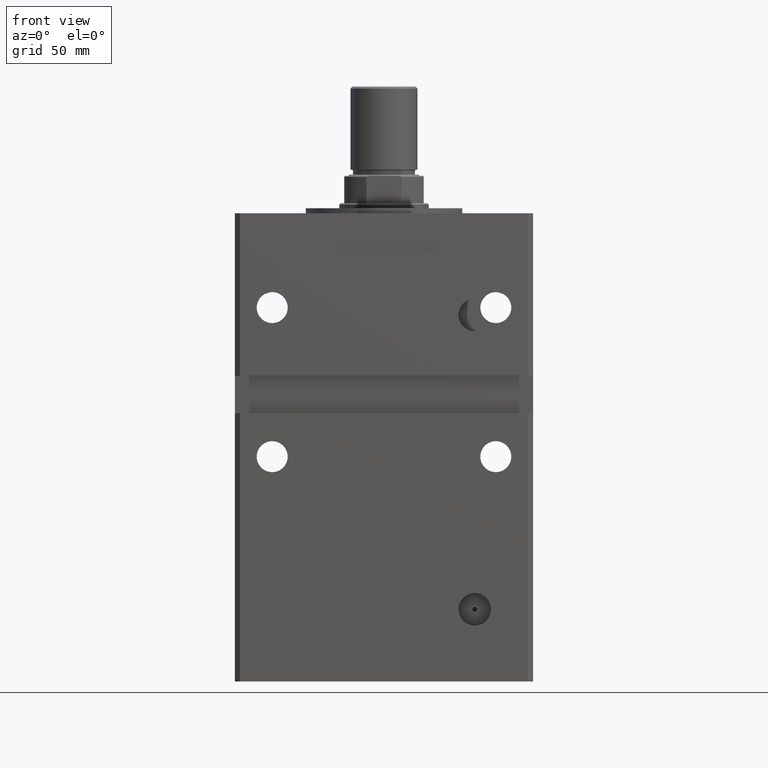
[diagram: clean part render]
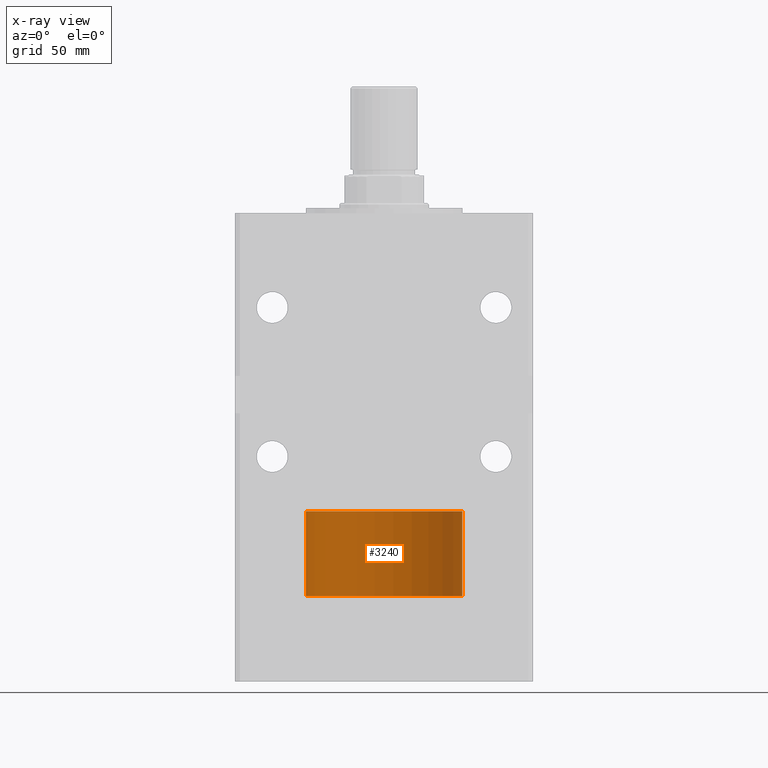
[diagram: x-ray — body ghosted, one internal face saturated and labeled with its STEP entity id]
A machine part, front view, then the same camera in x-ray: the body is ghosted and one INTERNAL B-rep face — a face not visible from any outside direction — is saturated and labeled: STEP entity #3240.
In plain terms, the highlighted cylindrical surface (partial cylindrical patch) has radius 31.5 mm, axis along (-0, -0, -1).
Its self-contained STEP definition (entity closure, byte-faithful):
#325 = VERTEX_POINT ( 'NONE', #21987 ) ;
#1122 = ORIENTED_EDGE ( 'NONE', *, *, #26723, .F. ) ;
#3240 = ADVANCED_FACE ( 'NONE', ( #3257 ), #8397, .T. ) ;
#3257 = FACE_OUTER_BOUND ( 'NONE', #14726, .T. ) ;
#5387 = LINE ( 'NONE', #53585, #15657 ) ;
#6678 = CARTESIAN_POINT ( 'NONE',  ( -31.50000000000000000, 0.000000000000000000, 34.25000000000000000 ) ) ;
#8397 = CYLINDRICAL_SURFACE ( 'NONE', #18256, 31.50000000000000000 ) ;
#11391 = DIRECTION ( 'NONE',  ( 0.000000000000000000, 0.000000000000000000, 1.000000000000000000 ) ) ;
#11626 = EDGE_CURVE ( 'NONE', #18451, #35536, #29137, .T. ) ;
#14726 = EDGE_LOOP ( 'NONE', ( #1122, #33065, #20530, #35400 ) ) ;
#15657 = VECTOR ( 'NONE', #45542, 1000.000000000000000 ) ;
#17992 = CARTESIAN_POINT ( 'NONE',  ( 31.50000000000000000, 3.857637417314162689E-15, 0.000000000000000000 ) ) ;
#18256 = AXIS2_PLACEMENT_3D ( 'NONE', #25898, #46863, #43398 ) ;
#18421 = VERTEX_POINT ( 'NONE', #6678 ) ;
#18451 = VERTEX_POINT ( 'NONE', #27612 ) ;
#20530 = ORIENTED_EDGE ( 'NONE', *, *, #44345, .T. ) ;
#21987 = CARTESIAN_POINT ( 'NONE',  ( -31.50000000000000000, 0.000000000000000000, 0.000000000000000000 ) ) ;
#24557 = DIRECTION ( 'NONE',  ( -0.000000000000000000, -0.000000000000000000, -1.000000000000000000 ) ) ;
#25898 = CARTESIAN_POINT ( 'NONE',  ( 0.000000000000000000, 0.000000000000000000, 34.25000000000000000 ) ) ;
#26723 = EDGE_CURVE ( 'NONE', #18451, #18421, #30257, .T. ) ;
#27612 = CARTESIAN_POINT ( 'NONE',  ( 31.50000000000000000, 3.857637417314162689E-15, 34.25000000000000000 ) ) ;
#27969 = EDGE_CURVE ( 'NONE', #18421, #325, #5387, .T. ) ;
#29137 = LINE ( 'NONE', #50968, #34139 ) ;
#30257 = CIRCLE ( 'NONE', #50432, 31.50000000000000000 ) ;
#33065 = ORIENTED_EDGE ( 'NONE', *, *, #11626, .T. ) ;
#34139 = VECTOR ( 'NONE', #24557, 1000.000000000000000 ) ;
#35400 = ORIENTED_EDGE ( 'NONE', *, *, #27969, .F. ) ;
#35536 = VERTEX_POINT ( 'NONE', #17992 ) ;
#38901 = AXIS2_PLACEMENT_3D ( 'NONE', #54983, #11391, #46398 ) ;
#42128 = DIRECTION ( 'NONE',  ( 0.000000000000000000, 0.000000000000000000, 1.000000000000000000 ) ) ;
#43398 = DIRECTION ( 'NONE',  ( -1.000000000000000000, 0.000000000000000000, 0.000000000000000000 ) ) ;
#44345 = EDGE_CURVE ( 'NONE', #35536, #325, #54499, .T. ) ;
#45542 = DIRECTION ( 'NONE',  ( -0.000000000000000000, -0.000000000000000000, -1.000000000000000000 ) ) ;
#46398 = DIRECTION ( 'NONE',  ( 1.000000000000000000, 0.000000000000000000, 0.000000000000000000 ) ) ;
#46863 = DIRECTION ( 'NONE',  ( -0.000000000000000000, -0.000000000000000000, -1.000000000000000000 ) ) ;
#50432 = AXIS2_PLACEMENT_3D ( 'NONE', #55023, #42128, #55863 ) ;
#50968 = CARTESIAN_POINT ( 'NONE',  ( 31.50000000000000000, 3.857637417314162689E-15, 34.25000000000000000 ) ) ;
#53585 = CARTESIAN_POINT ( 'NONE',  ( -31.50000000000000000, 0.000000000000000000, 34.25000000000000000 ) ) ;
#54499 = CIRCLE ( 'NONE', #38901, 31.50000000000000000 ) ;
#54983 = CARTESIAN_POINT ( 'NONE',  ( 0.000000000000000000, 0.000000000000000000, 0.000000000000000000 ) ) ;
#55023 = CARTESIAN_POINT ( 'NONE',  ( 0.000000000000000000, 0.000000000000000000, 34.25000000000000000 ) ) ;
#55863 = DIRECTION ( 'NONE',  ( 1.000000000000000000, 0.000000000000000000, 0.000000000000000000 ) ) ;